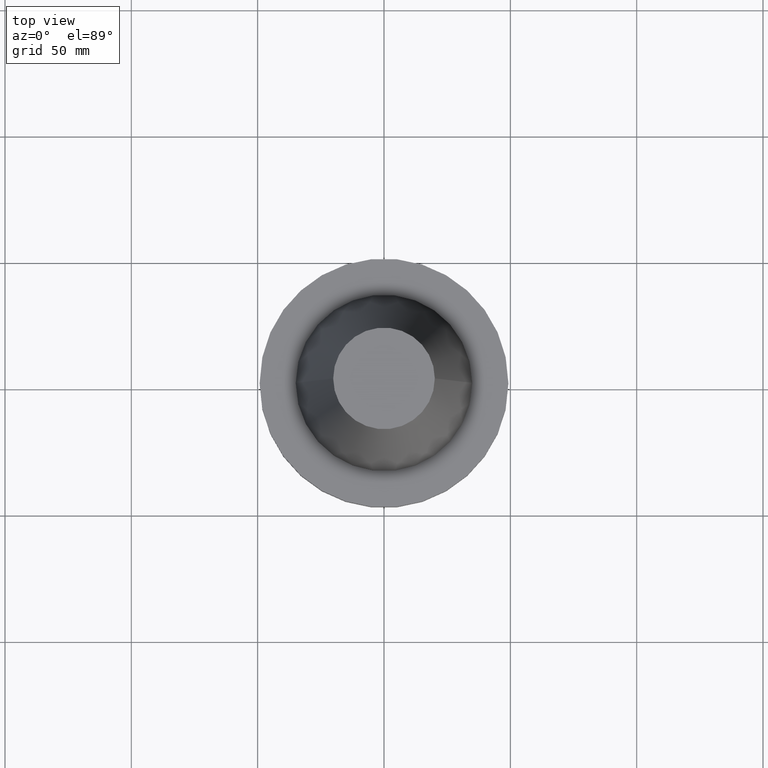
[diagram: clean part render]
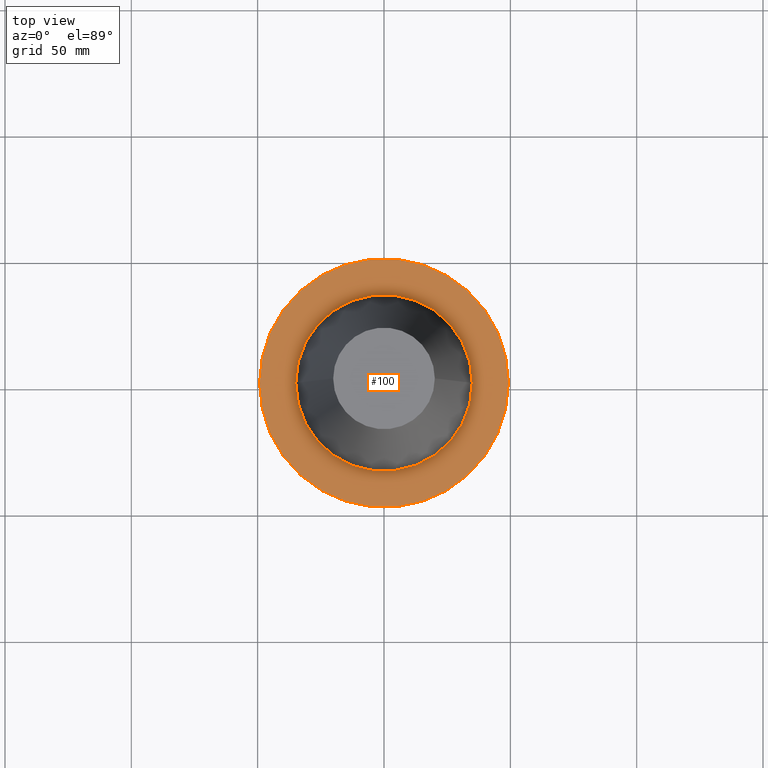
[diagram: same view with one face highlighted and labeled with its STEP entity id]
A machine part, top view. The second image highlights one B-rep face of the part: STEP entity #100.
In plain terms, the highlighted planar face has unit normal (0, 0, -1).
Its self-contained STEP definition (entity closure, byte-faithful):
#1 = EDGE_LOOP ( 'NONE', ( #453, #149 ) ) ;
#4 = ORIENTED_EDGE ( 'NONE', *, *, #840, .F. ) ;
#57 = DIRECTION ( 'NONE',  ( -0.000000000000000000, -0.000000000000000000, 1.000000000000000000 ) ) ;
#65 = CIRCLE ( 'NONE', #330, 49.21499999999999631 ) ;
#83 = ORIENTED_EDGE ( 'NONE', *, *, #810, .F. ) ;
#92 = CARTESIAN_POINT ( 'NONE',  ( -49.21499999999999631, 6.027099222003697826E-15, -1.499999999999987566 ) ) ;
#94 = VERTEX_POINT ( 'NONE', #108 ) ;
#100 = ADVANCED_FACE ( 'NONE', ( #366, #307 ), #565, .F. ) ;
#106 = CARTESIAN_POINT ( 'NONE',  ( 0.000000000000000000, 0.000000000000000000, -1.499999999999987566 ) ) ;
#108 = CARTESIAN_POINT ( 'NONE',  ( -34.92499999999999005, 4.277078946022130098E-15, -1.499999999999987566 ) ) ;
#125 = AXIS2_PLACEMENT_3D ( 'NONE', #240, #503, #767 ) ;
#149 = ORIENTED_EDGE ( 'NONE', *, *, #507, .T. ) ;
#158 = VERTEX_POINT ( 'NONE', #651 ) ;
#208 = CARTESIAN_POINT ( 'NONE',  ( 0.000000000000000000, 0.000000000000000000, -1.499999999999987566 ) ) ;
#222 = DIRECTION ( 'NONE',  ( -0.000000000000000000, -0.000000000000000000, 1.000000000000000000 ) ) ;
#228 = CARTESIAN_POINT ( 'NONE',  ( 0.000000000000000000, 0.000000000000000000, -1.499999999999987566 ) ) ;
#240 = CARTESIAN_POINT ( 'NONE',  ( 0.000000000000000000, 49.21499999999999631, -1.499999999999992895 ) ) ;
#307 = FACE_OUTER_BOUND ( 'NONE', #1, .T. ) ;
#330 = AXIS2_PLACEMENT_3D ( 'NONE', #208, #736, #607 ) ;
#341 = AXIS2_PLACEMENT_3D ( 'NONE', #228, #688, #352 ) ;
#352 = DIRECTION ( 'NONE',  ( 1.000000000000000000, 0.000000000000000000, 0.000000000000000000 ) ) ;
#363 = EDGE_LOOP ( 'NONE', ( #4, #83 ) ) ;
#366 = FACE_BOUND ( 'NONE', #363, .T. ) ;
#414 = VERTEX_POINT ( 'NONE', #739 ) ;
#447 = CIRCLE ( 'NONE', #755, 34.92499999999999005 ) ;
#453 = ORIENTED_EDGE ( 'NONE', *, *, #650, .T. ) ;
#491 = CIRCLE ( 'NONE', #341, 34.92499999999999005 ) ;
#503 = DIRECTION ( 'NONE',  ( 0.000000000000000000, 0.000000000000000000, -1.000000000000000000 ) ) ;
#507 = EDGE_CURVE ( 'NONE', #829, #414, #603, .T. ) ;
#523 = AXIS2_PLACEMENT_3D ( 'NONE', #654, #57, #642 ) ;
#555 = DIRECTION ( 'NONE',  ( 1.000000000000000000, 0.000000000000000000, 0.000000000000000000 ) ) ;
#565 = PLANE ( 'NONE',  #125 ) ;
#603 = CIRCLE ( 'NONE', #523, 49.21499999999999631 ) ;
#607 = DIRECTION ( 'NONE',  ( 1.000000000000000000, 0.000000000000000000, 0.000000000000000000 ) ) ;
#642 = DIRECTION ( 'NONE',  ( 1.000000000000000000, 0.000000000000000000, 0.000000000000000000 ) ) ;
#650 = EDGE_CURVE ( 'NONE', #414, #829, #65, .T. ) ;
#651 = CARTESIAN_POINT ( 'NONE',  ( 34.92499999999999005, 0.000000000000000000, -1.499999999999987566 ) ) ;
#654 = CARTESIAN_POINT ( 'NONE',  ( 0.000000000000000000, 0.000000000000000000, -1.499999999999987566 ) ) ;
#688 = DIRECTION ( 'NONE',  ( -0.000000000000000000, -0.000000000000000000, 1.000000000000000000 ) ) ;
#736 = DIRECTION ( 'NONE',  ( -0.000000000000000000, -0.000000000000000000, 1.000000000000000000 ) ) ;
#739 = CARTESIAN_POINT ( 'NONE',  ( 49.21499999999999631, 0.000000000000000000, -1.499999999999987566 ) ) ;
#755 = AXIS2_PLACEMENT_3D ( 'NONE', #106, #222, #555 ) ;
#767 = DIRECTION ( 'NONE',  ( -1.000000000000000000, 0.000000000000000000, -0.000000000000000000 ) ) ;
#810 = EDGE_CURVE ( 'NONE', #94, #158, #447, .T. ) ;
#829 = VERTEX_POINT ( 'NONE', #92 ) ;
#840 = EDGE_CURVE ( 'NONE', #158, #94, #491, .T. ) ;